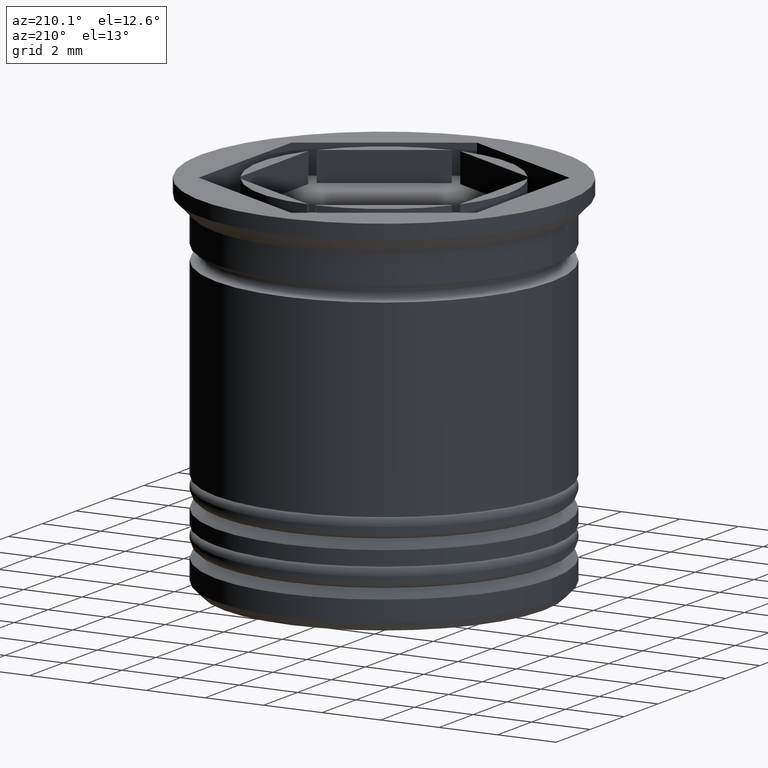
[diagram: clean part render]
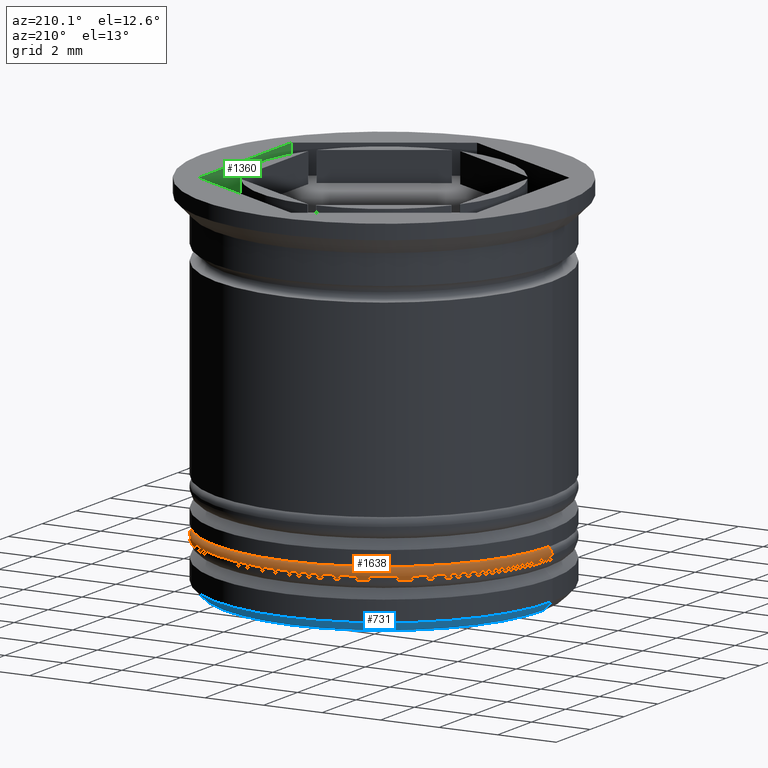
[diagram: same view with three faces highlighted in distinct colors, each labeled with its STEP entity id]
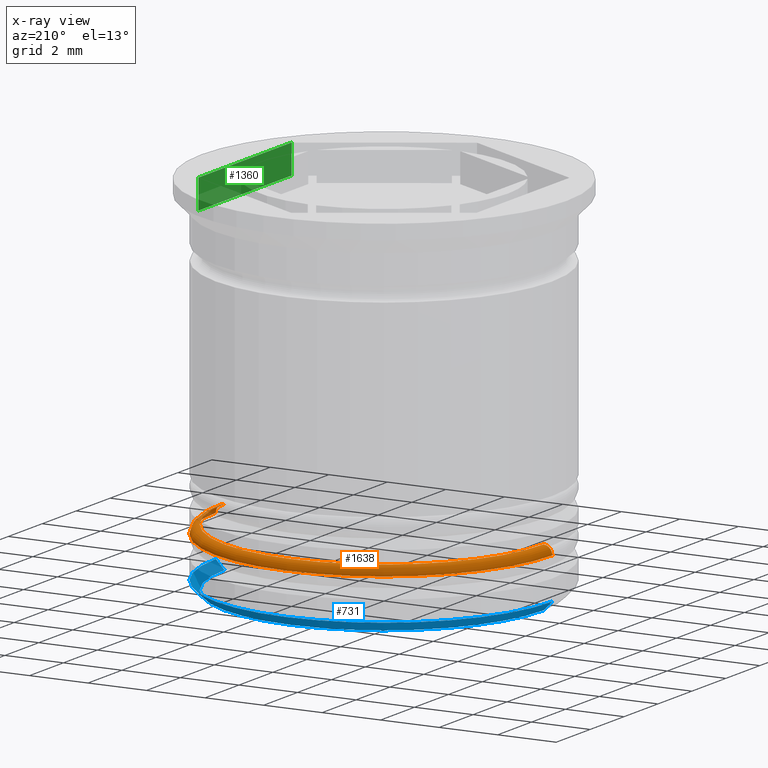
[diagram: x-ray of the same camera — body ghosted, the three highlighted faces saturated]
A machine part, auxiliary view with three faces highlighted in distinct colors.
The next image is the same camera in x-ray (body ghosted, the three faces saturated) — at least one of them is partly hidden behind the body in this view.
Their STEP definitions:

[orange] entity #1638 — the highlighted toroidal blend (fillet) surface has major radius 5.45 mm and minor (blend) radius 0.3 mm.
#3 = DIRECTION ( 'NONE',  ( 0.000000000000000000, 0.000000000000000000, -1.000000000000000000 ) ) ;
#112 = DIRECTION ( 'NONE',  ( 0.000000000000000000, 0.000000000000000000, -1.000000000000000000 ) ) ;
#120 = VERTEX_POINT ( 'NONE', #687 ) ;
#137 = EDGE_CURVE ( 'NONE', #1005, #120, #1724, .T. ) ;
#182 = CARTESIAN_POINT ( 'NONE',  ( -5.450000000000001954, 0.000000000000000000, -10.80000000000000071 ) ) ;
#274 = ORIENTED_EDGE ( 'NONE', *, *, #729, .T. ) ;
#313 = ORIENTED_EDGE ( 'NONE', *, *, #916, .F. ) ;
#314 = DIRECTION ( 'NONE',  ( 0.000000000000000000, 0.000000000000000000, -1.000000000000000000 ) ) ;
#344 = DIRECTION ( 'NONE',  ( -0.000000000000000000, -1.000000000000000000, -0.000000000000000000 ) ) ;
#359 = DIRECTION ( 'NONE',  ( -0.000000000000000000, -0.000000000000000000, 1.000000000000000000 ) ) ;
#491 = DIRECTION ( 'NONE',  ( -1.224646799147353207E-16, 1.000000000000000000, 0.000000000000000000 ) ) ;
#617 = DIRECTION ( 'NONE',  ( -1.000000000000000000, 0.000000000000000000, 0.000000000000000000 ) ) ;
#638 = CARTESIAN_POINT ( 'NONE',  ( 5.450000000000001954, 6.674325055353077210E-16, -10.80000000000000071 ) ) ;
#687 = CARTESIAN_POINT ( 'NONE',  ( -5.450000000000001954, 0.000000000000000000, -10.50000000000000178 ) ) ;
#723 = AXIS2_PLACEMENT_3D ( 'NONE', #638, #491, #1548 ) ;
#729 = EDGE_CURVE ( 'NONE', #1005, #1533, #1560, .T. ) ;
#736 = ORIENTED_EDGE ( 'NONE', *, *, #137, .F. ) ;
#743 = AXIS2_PLACEMENT_3D ( 'NONE', #1029, #3, #617 ) ;
#773 = CARTESIAN_POINT ( 'NONE',  ( 5.450000000000001954, 6.858022075225179538E-16, -10.50000000000000178 ) ) ;
#828 = DIRECTION ( 'NONE',  ( -1.000000000000000000, 0.000000000000000000, 0.000000000000000000 ) ) ;
#916 = EDGE_CURVE ( 'NONE', #120, #1707, #1366, .T. ) ;
#972 = AXIS2_PLACEMENT_3D ( 'NONE', #1157, #359, #828 ) ;
#994 = EDGE_CURVE ( 'NONE', #1707, #1533, #1618, .T. ) ;
#1005 = VERTEX_POINT ( 'NONE', #773 ) ;
#1029 = CARTESIAN_POINT ( 'NONE',  ( 0.000000000000000000, 0.000000000000000000, -10.80000000000000071 ) ) ;
#1050 = EDGE_LOOP ( 'NONE', ( #736, #274, #1631, #313 ) ) ;
#1059 = TOROIDAL_SURFACE ( 'NONE', #1944, 5.450000000000001954, 0.2999999999999999889 ) ;
#1157 = CARTESIAN_POINT ( 'NONE',  ( 0.000000000000000000, 0.000000000000000000, -10.50000000000000178 ) ) ;
#1262 = CARTESIAN_POINT ( 'NONE',  ( 5.750000000000001776, 0.000000000000000000, -10.80000000000000071 ) ) ;
#1312 = CARTESIAN_POINT ( 'NONE',  ( -5.750000000000001776, 7.041719095097282852E-16, -10.80000000000000071 ) ) ;
#1366 = CIRCLE ( 'NONE', #1521, 0.2999999999999999334 ) ;
#1495 = FACE_OUTER_BOUND ( 'NONE', #1050, .T. ) ;
#1505 = CARTESIAN_POINT ( 'NONE',  ( 0.000000000000000000, 0.000000000000000000, -10.80000000000000071 ) ) ;
#1521 = AXIS2_PLACEMENT_3D ( 'NONE', #182, #344, #314 ) ;
#1533 = VERTEX_POINT ( 'NONE', #1262 ) ;
#1548 = DIRECTION ( 'NONE',  ( -1.000000000000000000, -1.224646799147353207E-16, 0.000000000000000000 ) ) ;
#1560 = CIRCLE ( 'NONE', #723, 0.2999999999999999334 ) ;
#1618 = CIRCLE ( 'NONE', #743, 5.750000000000001776 ) ;
#1631 = ORIENTED_EDGE ( 'NONE', *, *, #994, .F. ) ;
#1638 = ADVANCED_FACE ( 'NONE', ( #1495 ), #1059, .T. ) ;
#1648 = DIRECTION ( 'NONE',  ( -1.000000000000000000, 0.000000000000000000, 0.000000000000000000 ) ) ;
#1707 = VERTEX_POINT ( 'NONE', #1312 ) ;
#1724 = CIRCLE ( 'NONE', #972, 5.450000000000001954 ) ;
#1944 = AXIS2_PLACEMENT_3D ( 'NONE', #1505, #112, #1648 ) ;

[blue] entity #731 — the highlighted conical surface has half-angle 45 deg.
#7 = LINE ( 'NONE', #173, #135 ) ;
#58 = DIRECTION ( 'NONE',  ( -1.000000000000000000, 0.000000000000000000, 0.000000000000000000 ) ) ;
#101 = DIRECTION ( 'NONE',  ( 1.000000000000000000, 0.000000000000000000, 0.000000000000000000 ) ) ;
#129 = AXIS2_PLACEMENT_3D ( 'NONE', #1263, #1437, #58 ) ;
#135 = VECTOR ( 'NONE', #1063, 1000.000000000000000 ) ;
#173 = CARTESIAN_POINT ( 'NONE',  ( -5.750000000000001776, 7.041719095097282852E-16, -12.19999999999999929 ) ) ;
#224 = DIRECTION ( 'NONE',  ( -0.000000000000000000, -0.000000000000000000, 1.000000000000000000 ) ) ;
#249 = CARTESIAN_POINT ( 'NONE',  ( 0.000000000000000000, 0.000000000000000000, -12.50000000000000000 ) ) ;
#351 = VERTEX_POINT ( 'NONE', #1000 ) ;
#385 = CARTESIAN_POINT ( 'NONE',  ( 0.000000000000000000, 0.000000000000000000, -12.19999999999999929 ) ) ;
#394 = DIRECTION ( 'NONE',  ( -1.000000000000000000, 0.000000000000000000, 0.000000000000000000 ) ) ;
#399 = CARTESIAN_POINT ( 'NONE',  ( 5.750000000000001776, 0.000000000000000000, -12.19999999999999929 ) ) ;
#406 = CIRCLE ( 'NONE', #129, 5.750000000000001776 ) ;
#486 = CIRCLE ( 'NONE', #1880, 5.449999999999995737 ) ;
#573 = DIRECTION ( 'NONE',  ( 0.000000000000000000, 0.000000000000000000, -1.000000000000000000 ) ) ;
#592 = VERTEX_POINT ( 'NONE', #965 ) ;
#593 = DIRECTION ( 'NONE',  ( 0.7071067811865526798, 0.000000000000000000, 0.7071067811865424657 ) ) ;
#731 = ADVANCED_FACE ( 'NONE', ( #781 ), #1188, .T. ) ;
#775 = ORIENTED_EDGE ( 'NONE', *, *, #1451, .F. ) ;
#781 = FACE_OUTER_BOUND ( 'NONE', #1305, .T. ) ;
#790 = AXIS2_PLACEMENT_3D ( 'NONE', #385, #224, #101 ) ;
#801 = EDGE_CURVE ( 'NONE', #351, #859, #486, .T. ) ;
#823 = EDGE_CURVE ( 'NONE', #859, #592, #1667, .T. ) ;
#859 = VERTEX_POINT ( 'NONE', #1233 ) ;
#870 = EDGE_CURVE ( 'NONE', #351, #933, #7, .T. ) ;
#933 = VERTEX_POINT ( 'NONE', #1696 ) ;
#965 = CARTESIAN_POINT ( 'NONE',  ( 5.750000000000001776, 0.000000000000000000, -12.19999999999999929 ) ) ;
#1000 = CARTESIAN_POINT ( 'NONE',  ( -5.449999999999995737, 6.858022075225175594E-16, -12.50000000000000000 ) ) ;
#1063 = DIRECTION ( 'NONE',  ( -0.7071067811865526798, 8.659560562354995721E-17, 0.7071067811865424657 ) ) ;
#1188 = CONICAL_SURFACE ( 'NONE', #790, 5.750000000000001776, 0.7853981633974554954 ) ;
#1233 = CARTESIAN_POINT ( 'NONE',  ( 5.449999999999995737, 0.000000000000000000, -12.50000000000000000 ) ) ;
#1263 = CARTESIAN_POINT ( 'NONE',  ( 0.000000000000000000, 0.000000000000000000, -12.19999999999999929 ) ) ;
#1305 = EDGE_LOOP ( 'NONE', ( #1418, #1453, #775, #1816 ) ) ;
#1418 = ORIENTED_EDGE ( 'NONE', *, *, #801, .F. ) ;
#1437 = DIRECTION ( 'NONE',  ( -0.000000000000000000, -0.000000000000000000, 1.000000000000000000 ) ) ;
#1451 = EDGE_CURVE ( 'NONE', #592, #933, #406, .T. ) ;
#1453 = ORIENTED_EDGE ( 'NONE', *, *, #870, .T. ) ;
#1667 = LINE ( 'NONE', #399, #1883 ) ;
#1696 = CARTESIAN_POINT ( 'NONE',  ( -5.750000000000001776, 7.041719095097282852E-16, -12.19999999999999929 ) ) ;
#1816 = ORIENTED_EDGE ( 'NONE', *, *, #823, .F. ) ;
#1880 = AXIS2_PLACEMENT_3D ( 'NONE', #249, #573, #394 ) ;
#1883 = VECTOR ( 'NONE', #593, 1000.000000000000000 ) ;

[green] entity #1360 — the highlighted planar face has unit normal (1, -0, 0).
#31 = CARTESIAN_POINT ( 'NONE',  ( 4.750000000000000888, -2.742413778650722556, 0.000000000000000000 ) ) ;
#68 = EDGE_CURVE ( 'NONE', #1754, #1109, #1389, .T. ) ;
#316 = DIRECTION ( 'NONE',  ( 0.000000000000000000, 1.000000000000000000, 0.000000000000000000 ) ) ;
#420 = EDGE_CURVE ( 'NONE', #1109, #1038, #1328, .T. ) ;
#459 = CARTESIAN_POINT ( 'NONE',  ( 4.750000000000000888, -2.742413778650722556, -1.000000000000000000 ) ) ;
#479 = VECTOR ( 'NONE', #316, 1000.000000000000000 ) ;
#499 = DIRECTION ( 'NONE',  ( 1.000000000000000000, -0.000000000000000000, 0.000000000000000000 ) ) ;
#515 = ORIENTED_EDGE ( 'NONE', *, *, #68, .F. ) ;
#643 = PLANE ( 'NONE',  #655 ) ;
#650 = DIRECTION ( 'NONE',  ( -0.000000000000000000, -0.000000000000000000, 1.000000000000000000 ) ) ;
#655 = AXIS2_PLACEMENT_3D ( 'NONE', #459, #499, #1899 ) ;
#786 = VECTOR ( 'NONE', #1588, 1000.000000000000000 ) ;
#814 = VECTOR ( 'NONE', #650, 1000.000000000000000 ) ;
#885 = EDGE_CURVE ( 'NONE', #1754, #992, #1105, .T. ) ;
#955 = LINE ( 'NONE', #31, #786 ) ;
#992 = VERTEX_POINT ( 'NONE', #1916 ) ;
#1006 = CARTESIAN_POINT ( 'NONE',  ( 4.750000000000000888, 2.742413778650723888, -1.000000000000000000 ) ) ;
#1038 = VERTEX_POINT ( 'NONE', #1404 ) ;
#1105 = LINE ( 'NONE', #1849, #814 ) ;
#1109 = VERTEX_POINT ( 'NONE', #1574 ) ;
#1193 = FACE_OUTER_BOUND ( 'NONE', #1512, .T. ) ;
#1228 = CARTESIAN_POINT ( 'NONE',  ( 4.750000000000000888, -2.742413778650722556, -1.000000000000000000 ) ) ;
#1243 = ORIENTED_EDGE ( 'NONE', *, *, #1386, .T. ) ;
#1325 = VECTOR ( 'NONE', #1640, 1000.000000000000000 ) ;
#1328 = LINE ( 'NONE', #1006, #1325 ) ;
#1360 = ADVANCED_FACE ( 'NONE', ( #1193 ), #643, .F. ) ;
#1376 = CARTESIAN_POINT ( 'NONE',  ( 4.750000000000000888, -2.742413778650722556, -1.000000000000000000 ) ) ;
#1379 = ORIENTED_EDGE ( 'NONE', *, *, #420, .F. ) ;
#1386 = EDGE_CURVE ( 'NONE', #992, #1038, #955, .T. ) ;
#1389 = LINE ( 'NONE', #1228, #479 ) ;
#1404 = CARTESIAN_POINT ( 'NONE',  ( 4.750000000000000888, 2.742413778650723888, 0.000000000000000000 ) ) ;
#1512 = EDGE_LOOP ( 'NONE', ( #1243, #1379, #515, #1885 ) ) ;
#1574 = CARTESIAN_POINT ( 'NONE',  ( 4.750000000000000888, 2.742413778650723888, -1.000000000000000000 ) ) ;
#1588 = DIRECTION ( 'NONE',  ( 0.000000000000000000, 1.000000000000000000, 0.000000000000000000 ) ) ;
#1640 = DIRECTION ( 'NONE',  ( -0.000000000000000000, -0.000000000000000000, 1.000000000000000000 ) ) ;
#1754 = VERTEX_POINT ( 'NONE', #1376 ) ;
#1849 = CARTESIAN_POINT ( 'NONE',  ( 4.750000000000000888, -2.742413778650722556, -1.000000000000000000 ) ) ;
#1885 = ORIENTED_EDGE ( 'NONE', *, *, #885, .T. ) ;
#1899 = DIRECTION ( 'NONE',  ( 0.000000000000000000, 0.000000000000000000, -1.000000000000000000 ) ) ;
#1916 = CARTESIAN_POINT ( 'NONE',  ( 4.750000000000000888, -2.742413778650722556, 0.000000000000000000 ) ) ;